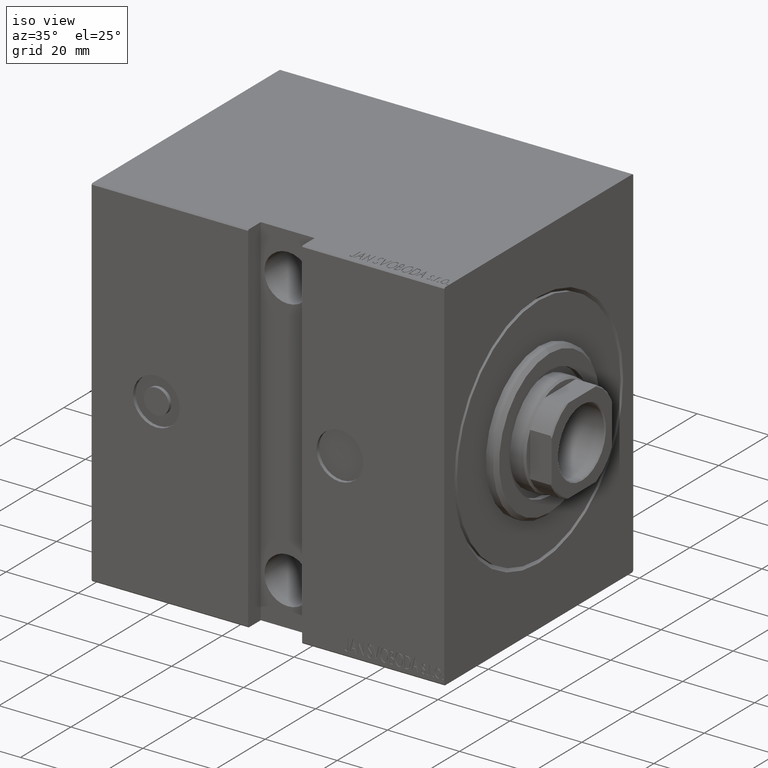
[diagram: clean part render]
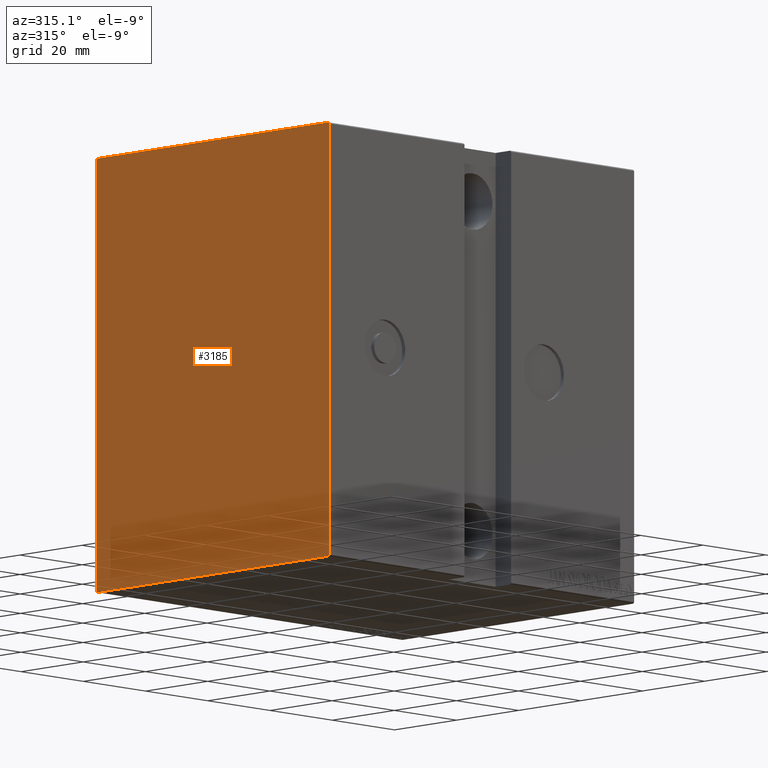
[diagram: tour spotlight — one face highlighted and labeled with its STEP entity id]
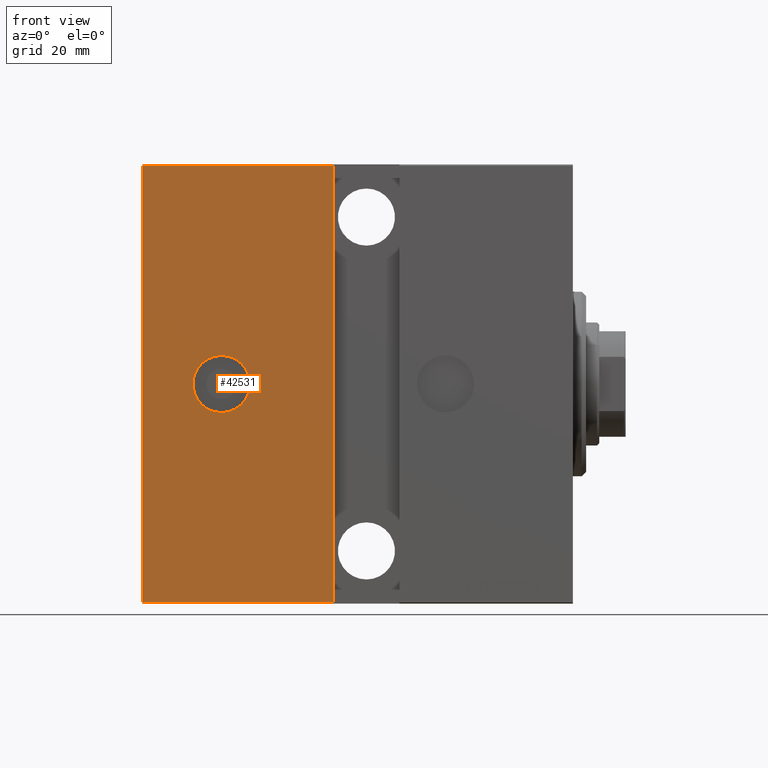
[diagram: tour spotlight — one face highlighted and labeled with its STEP entity id]
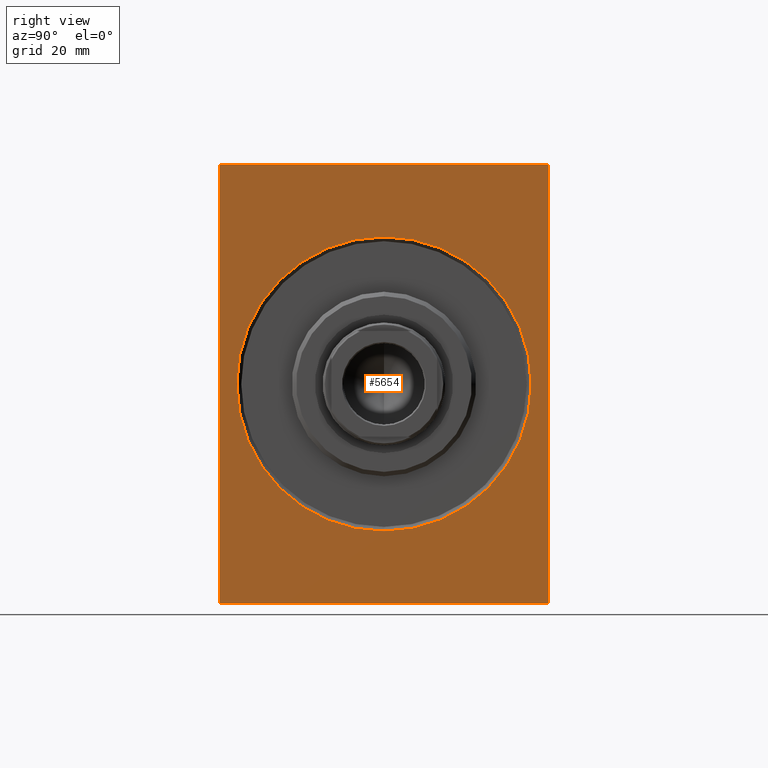
[diagram: tour spotlight — one face highlighted and labeled with its STEP entity id]
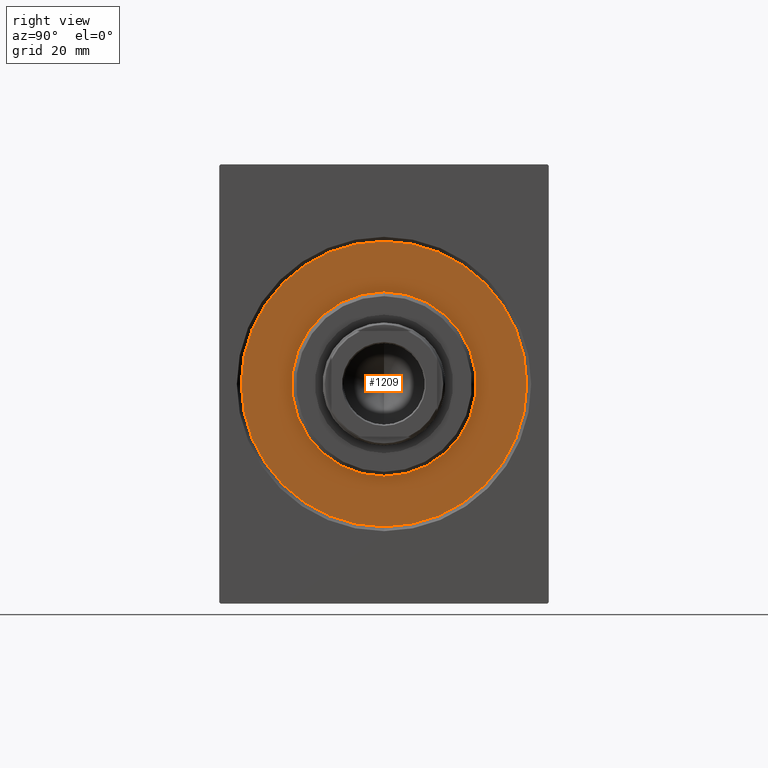
[diagram: tour spotlight — one face highlighted and labeled with its STEP entity id]
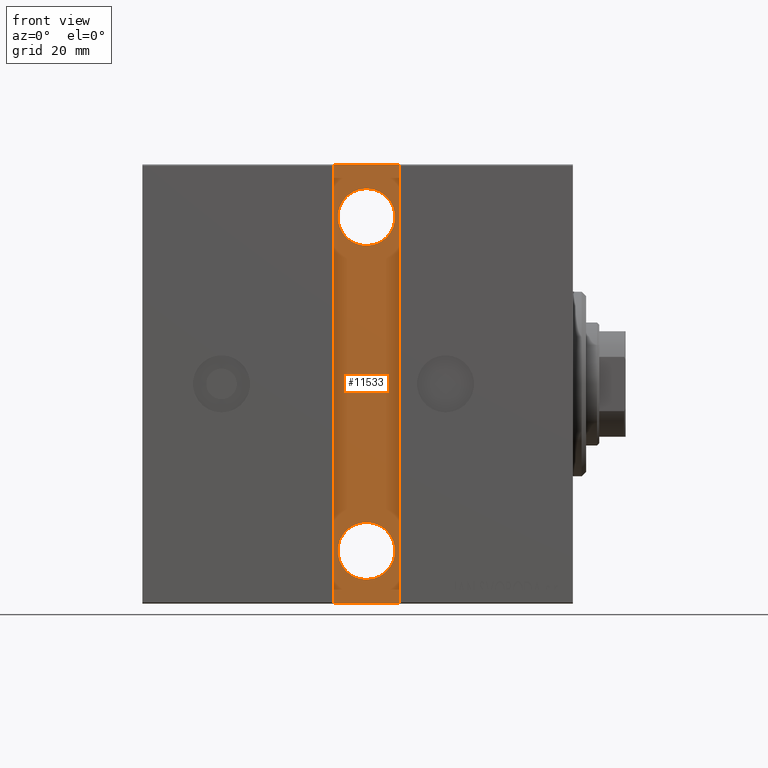
[diagram: tour spotlight — one face highlighted and labeled with its STEP entity id]
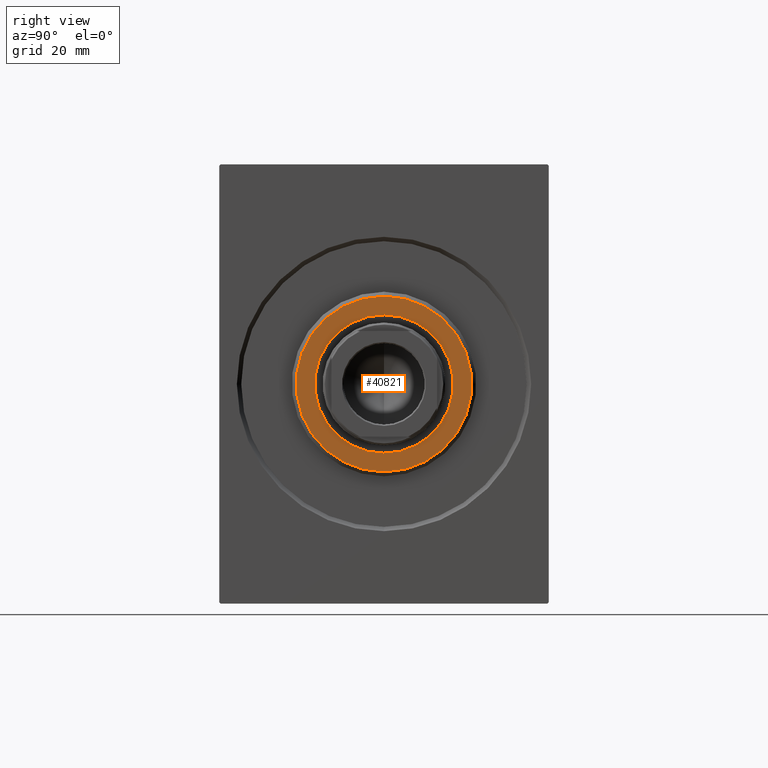
[diagram: tour spotlight — one face highlighted and labeled with its STEP entity id]
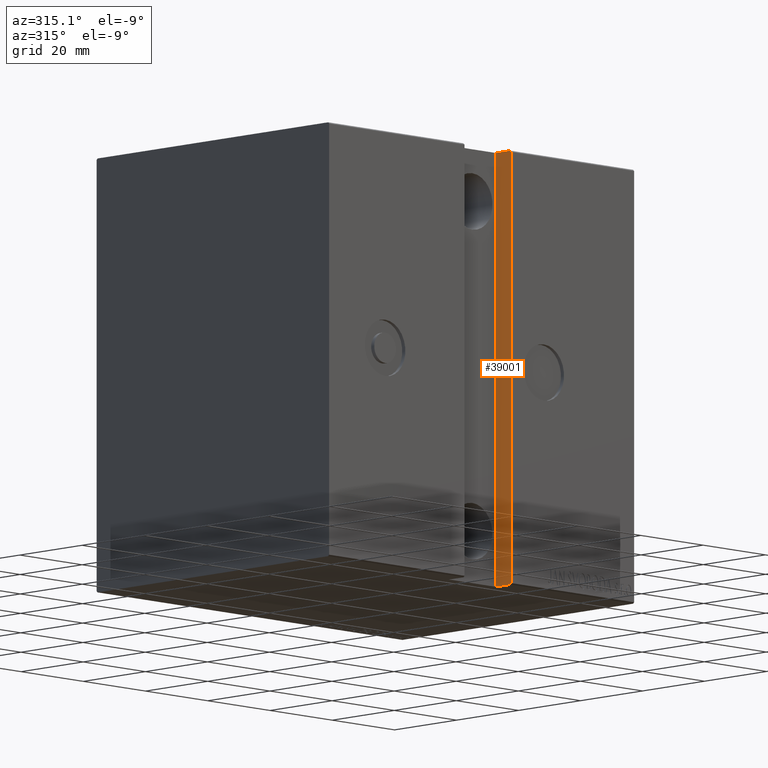
[diagram: tour spotlight — one face highlighted and labeled with its STEP entity id]
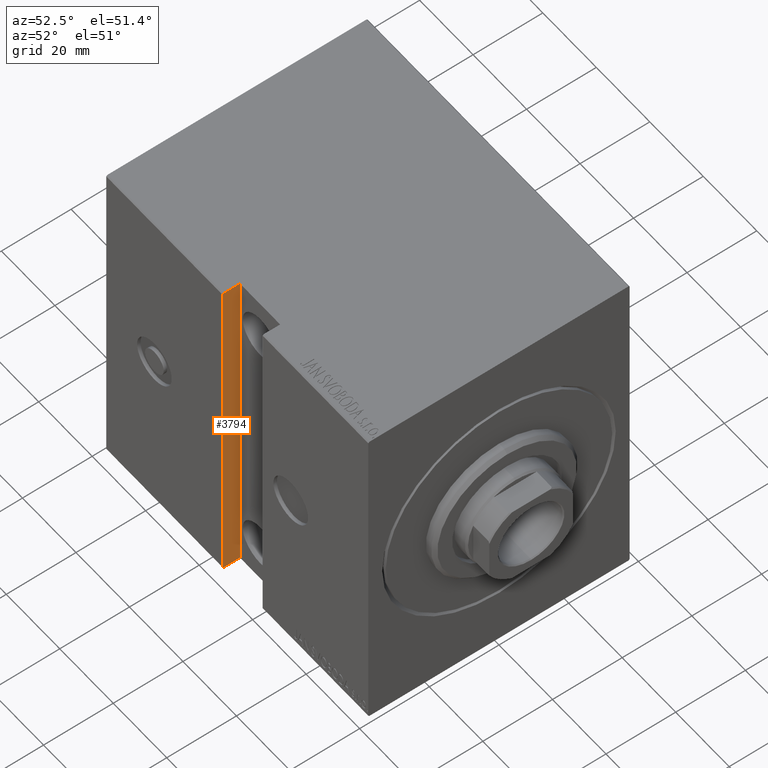
[diagram: tour spotlight — one face highlighted and labeled with its STEP entity id]
A machine part: a face-by-face anatomy tour. The part has 839 B-rep faces; the first image is the clean iso view, then the 8 largest visible faces are spotlighted one at a time (largest first), each with its STEP entity span.

Face 1 — auxiliary view, entity #3185. In plain terms, the highlighted planar face has unit normal (-1, 0, 0).
Definition (entity closure, byte-faithful):
#1185 = DIRECTION ( 'NONE',  ( -0.000000000000000000, 0.7071067811865474617, -0.7071067811865474617 ) ) ;
#1273 = LINE ( 'NONE', #18300, #32748 ) ;
#1602 = CARTESIAN_POINT ( 'NONE',  ( 98.00000000000000000, -43.59999999999999432, -43.59999999999999432 ) ) ;
#1852 = LINE ( 'NONE', #31779, #15270 ) ;
#2528 = VERTEX_POINT ( 'NONE', #19038 ) ;
#2651 = CARTESIAN_POINT ( 'NONE',  ( 98.00000000000000000, -37.19999999999997442, -50.00000000000001421 ) ) ;
#3185 = ADVANCED_FACE ( 'NONE', ( #15912 ), #35513, .T. ) ;
#3257 = EDGE_CURVE ( 'NONE', #35203, #31420, #37424, .T. ) ;
#3532 = EDGE_CURVE ( 'NONE', #38888, #35203, #21223, .T. ) ;
#3603 = CARTESIAN_POINT ( 'NONE',  ( 98.00000000000000000, 43.59999999999956088, -43.60000000000057696 ) ) ;
#4114 = CARTESIAN_POINT ( 'NONE',  ( 98.00000000000000000, -37.19999999999996732, 50.00000000000000000 ) ) ;
#5564 = LINE ( 'NONE', #18715, #21571 ) ;
#5673 = LINE ( 'NONE', #15382, #18474 ) ;
#6002 = CARTESIAN_POINT ( 'NONE',  ( 98.00000000000000000, 0.000000000000000000, 0.000000000000000000 ) ) ;
#7939 = VECTOR ( 'NONE', #33326, 1000.000000000000114 ) ;
#8648 = ORIENTED_EDGE ( 'NONE', *, *, #38945, .T. ) ;
#10097 = EDGE_CURVE ( 'NONE', #2528, #32942, #5673, .T. ) ;
#11416 = ORIENTED_EDGE ( 'NONE', *, *, #3257, .T. ) ;
#11550 = DIRECTION ( 'NONE',  ( 0.000000000000000000, -0.7071067811865556774, -0.7071067811865392461 ) ) ;
#15270 = VECTOR ( 'NONE', #11550, 1000.000000000000114 ) ;
#15382 = CARTESIAN_POINT ( 'NONE',  ( 98.00000000000000000, 37.50000000000000711, -50.00000000000000711 ) ) ;
#15912 = FACE_OUTER_BOUND ( 'NONE', #41046, .T. ) ;
#16068 = CARTESIAN_POINT ( 'NONE',  ( 98.00000000000000000, 43.60000000000042775, 43.59999999999941878 ) ) ;
#17355 = ORIENTED_EDGE ( 'NONE', *, *, #36508, .T. ) ;
#18300 = CARTESIAN_POINT ( 'NONE',  ( 98.00000000000000000, -37.50000000000000000, 50.00000000000000000 ) ) ;
#18474 = VECTOR ( 'NONE', #39240, 1000.000000000000000 ) ;
#18715 = CARTESIAN_POINT ( 'NONE',  ( 98.00000000000000000, 37.49999999999999289, 50.00000000000001421 ) ) ;
#18901 = VECTOR ( 'NONE', #35454, 1000.000000000000114 ) ;
#19038 = CARTESIAN_POINT ( 'NONE',  ( 98.00000000000000000, 37.50000000000000711, -49.70000000000000284 ) ) ;
#19244 = EDGE_CURVE ( 'NONE', #32355, #23278, #5564, .T. ) ;
#21223 = LINE ( 'NONE', #1602, #32844 ) ;
#21571 = VECTOR ( 'NONE', #28399, 1000.000000000000000 ) ;
#23278 = VERTEX_POINT ( 'NONE', #4114 ) ;
#23335 = ORIENTED_EDGE ( 'NONE', *, *, #3532, .T. ) ;
#23637 = LINE ( 'NONE', #3603, #7939 ) ;
#25599 = DIRECTION ( 'NONE',  ( 1.000000000000000000, 0.000000000000000000, 0.000000000000000000 ) ) ;
#25673 = EDGE_CURVE ( 'NONE', #23278, #36511, #1852, .T. ) ;
#25752 = LINE ( 'NONE', #16068, #18901 ) ;
#26058 = CARTESIAN_POINT ( 'NONE',  ( 98.00000000000000000, 37.19999999999998863, -50.00000000000000711 ) ) ;
#26658 = VECTOR ( 'NONE', #34831, 1000.000000000000000 ) ;
#28200 = CARTESIAN_POINT ( 'NONE',  ( 98.00000000000000000, 37.19999999999998153, 50.00000000000001421 ) ) ;
#28399 = DIRECTION ( 'NONE',  ( 0.000000000000000000, -1.000000000000000000, -1.850371707708594563E-16 ) ) ;
#29248 = DIRECTION ( 'NONE',  ( 0.000000000000000000, 0.000000000000000000, -1.000000000000000000 ) ) ;
#29379 = ORIENTED_EDGE ( 'NONE', *, *, #19244, .T. ) ;
#31420 = VERTEX_POINT ( 'NONE', #26058 ) ;
#31422 = DIRECTION ( 'NONE',  ( 0.000000000000000000, 0.000000000000000000, -1.000000000000000000 ) ) ;
#31779 = CARTESIAN_POINT ( 'NONE',  ( 98.00000000000000000, -43.59999999999956088, 43.60000000000057696 ) ) ;
#32355 = VERTEX_POINT ( 'NONE', #28200 ) ;
#32658 = EDGE_CURVE ( 'NONE', #32942, #32355, #25752, .T. ) ;
#32748 = VECTOR ( 'NONE', #31422, 1000.000000000000000 ) ;
#32844 = VECTOR ( 'NONE', #1185, 1000.000000000000114 ) ;
#32942 = VERTEX_POINT ( 'NONE', #39412 ) ;
#33326 = DIRECTION ( 'NONE',  ( -0.000000000000000000, 0.7071067811865556774, 0.7071067811865392461 ) ) ;
#33367 = CARTESIAN_POINT ( 'NONE',  ( 98.00000000000000000, -37.50000000000000000, -49.69999999999999574 ) ) ;
#33678 = ORIENTED_EDGE ( 'NONE', *, *, #10097, .T. ) ;
#34831 = DIRECTION ( 'NONE',  ( 0.000000000000000000, 1.000000000000000000, 9.251858538542970348E-17 ) ) ;
#35203 = VERTEX_POINT ( 'NONE', #2651 ) ;
#35454 = DIRECTION ( 'NONE',  ( -0.000000000000000000, -0.7071067811865392461, 0.7071067811865556774 ) ) ;
#35513 = PLANE ( 'NONE',  #35590 ) ;
#35590 = AXIS2_PLACEMENT_3D ( 'NONE', #6002, #25599, #29248 ) ;
#36508 = EDGE_CURVE ( 'NONE', #31420, #2528, #23637, .T. ) ;
#36511 = VERTEX_POINT ( 'NONE', #39786 ) ;
#37424 = LINE ( 'NONE', #41485, #26658 ) ;
#37996 = ORIENTED_EDGE ( 'NONE', *, *, #32658, .T. ) ;
#38888 = VERTEX_POINT ( 'NONE', #33367 ) ;
#38945 = EDGE_CURVE ( 'NONE', #36511, #38888, #1273, .T. ) ;
#39240 = DIRECTION ( 'NONE',  ( 0.000000000000000000, -1.387778780781445182E-16, 1.000000000000000000 ) ) ;
#39412 = CARTESIAN_POINT ( 'NONE',  ( 98.00000000000000000, 37.49999999999999289, 49.70000000000000284 ) ) ;
#39786 = CARTESIAN_POINT ( 'NONE',  ( 98.00000000000000000, -37.50000000000000000, 49.69999999999998153 ) ) ;
#41046 = EDGE_LOOP ( 'NONE', ( #11416, #17355, #33678, #37996, #29379, #41320, #8648, #23335 ) ) ;
#41320 = ORIENTED_EDGE ( 'NONE', *, *, #25673, .T. ) ;
#41485 = CARTESIAN_POINT ( 'NONE',  ( 98.00000000000000000, -37.50000000000000000, -50.00000000000001421 ) ) ;

Face 2 — front view, entity #42531. In plain terms, the highlighted planar face has unit normal (-0, 1, -0).
Definition (entity closure, byte-faithful):
#475 = CARTESIAN_POINT ( 'NONE',  ( 54.50000000000001421, 37.50000000000000000, 49.70000000000000284 ) ) ;
#1672 = AXIS2_PLACEMENT_3D ( 'NONE', #23271, #38999, #10337 ) ;
#2528 = VERTEX_POINT ( 'NONE', #19038 ) ;
#2790 = EDGE_CURVE ( 'NONE', #13850, #11504, #2821, .T. ) ;
#2821 = LINE ( 'NONE', #12513, #21141 ) ;
#3537 = CARTESIAN_POINT ( 'NONE',  ( 80.00000000000001421, 37.50000000000000000, -6.499999999999996447 ) ) ;
#4939 = CARTESIAN_POINT ( 'NONE',  ( 80.00000000000001421, 37.50000000000000000, 6.500000000000006217 ) ) ;
#5390 = DIRECTION ( 'NONE',  ( 0.000000000000000000, 1.387778780781445182E-16, -1.000000000000000000 ) ) ;
#5673 = LINE ( 'NONE', #15382, #18474 ) ;
#5960 = ORIENTED_EDGE ( 'NONE', *, *, #10097, .F. ) ;
#7438 = VERTEX_POINT ( 'NONE', #4939 ) ;
#9111 = CIRCLE ( 'NONE', #20126, 6.500000000000001776 ) ;
#9355 = DIRECTION ( 'NONE',  ( 0.000000000000000000, 0.000000000000000000, 1.000000000000000000 ) ) ;
#9459 = ORIENTED_EDGE ( 'NONE', *, *, #17709, .F. ) ;
#10097 = EDGE_CURVE ( 'NONE', #2528, #32942, #5673, .T. ) ;
#10337 = DIRECTION ( 'NONE',  ( 0.000000000000000000, 0.000000000000000000, 1.000000000000000000 ) ) ;
#10610 = VECTOR ( 'NONE', #37055, 1000.000000000000000 ) ;
#11504 = VERTEX_POINT ( 'NONE', #28212 ) ;
#12513 = CARTESIAN_POINT ( 'NONE',  ( 54.50000000000000000, 37.50000000000000000, -50.00000000000000711 ) ) ;
#13850 = VERTEX_POINT ( 'NONE', #475 ) ;
#15139 = ORIENTED_EDGE ( 'NONE', *, *, #17569, .T. ) ;
#15382 = CARTESIAN_POINT ( 'NONE',  ( 98.00000000000000000, 37.50000000000000711, -50.00000000000000711 ) ) ;
#16687 = EDGE_LOOP ( 'NONE', ( #5960, #34237, #18840, #15139 ) ) ;
#16888 = CARTESIAN_POINT ( 'NONE',  ( 80.00000000000001421, 37.50000000000000000, 5.204170427930419706E-15 ) ) ;
#17569 = EDGE_CURVE ( 'NONE', #13850, #32942, #20189, .T. ) ;
#17709 = EDGE_CURVE ( 'NONE', #31700, #7438, #9111, .T. ) ;
#17738 = ORIENTED_EDGE ( 'NONE', *, *, #32929, .F. ) ;
#17895 = LINE ( 'NONE', #37481, #10610 ) ;
#18474 = VECTOR ( 'NONE', #39240, 1000.000000000000000 ) ;
#18840 = ORIENTED_EDGE ( 'NONE', *, *, #2790, .F. ) ;
#19038 = CARTESIAN_POINT ( 'NONE',  ( 98.00000000000000000, 37.50000000000000711, -49.70000000000000284 ) ) ;
#20126 = AXIS2_PLACEMENT_3D ( 'NONE', #16888, #42083, #9355 ) ;
#20189 = LINE ( 'NONE', #20402, #24273 ) ;
#20402 = CARTESIAN_POINT ( 'NONE',  ( 98.00000000000000000, 37.49999999999999289, 49.70000000000000284 ) ) ;
#21141 = VECTOR ( 'NONE', #26288, 1000.000000000000000 ) ;
#23002 = CIRCLE ( 'NONE', #1672, 6.500000000000001776 ) ;
#23271 = CARTESIAN_POINT ( 'NONE',  ( 80.00000000000001421, 37.50000000000000000, 5.204170427930419706E-15 ) ) ;
#24273 = VECTOR ( 'NONE', #30084, 1000.000000000000000 ) ;
#24771 = CARTESIAN_POINT ( 'NONE',  ( 98.00000000000000000, 37.50000000000000711, -50.00000000000000711 ) ) ;
#26288 = DIRECTION ( 'NONE',  ( -1.387778780781445676E-16, -0.000000000000000000, -1.000000000000000000 ) ) ;
#28212 = CARTESIAN_POINT ( 'NONE',  ( 54.50000000000000000, 37.50000000000000000, -49.70000000000000284 ) ) ;
#30084 = DIRECTION ( 'NONE',  ( 1.000000000000000000, 0.000000000000000000, 0.000000000000000000 ) ) ;
#31700 = VERTEX_POINT ( 'NONE', #3537 ) ;
#32091 = EDGE_LOOP ( 'NONE', ( #17738, #9459 ) ) ;
#32929 = EDGE_CURVE ( 'NONE', #7438, #31700, #23002, .T. ) ;
#32942 = VERTEX_POINT ( 'NONE', #39412 ) ;
#33055 = EDGE_CURVE ( 'NONE', #2528, #11504, #17895, .T. ) ;
#34141 = AXIS2_PLACEMENT_3D ( 'NONE', #24771, #34901, #5390 ) ;
#34237 = ORIENTED_EDGE ( 'NONE', *, *, #33055, .T. ) ;
#34692 = FACE_OUTER_BOUND ( 'NONE', #16687, .T. ) ;
#34901 = DIRECTION ( 'NONE',  ( 0.000000000000000000, -1.000000000000000000, -1.387778780781445182E-16 ) ) ;
#37055 = DIRECTION ( 'NONE',  ( -1.000000000000000000, 0.000000000000000000, 0.000000000000000000 ) ) ;
#37481 = CARTESIAN_POINT ( 'NONE',  ( 98.00000000000000000, 37.50000000000000711, -49.70000000000000284 ) ) ;
#38745 = FACE_BOUND ( 'NONE', #32091, .T. ) ;
#38999 = DIRECTION ( 'NONE',  ( 0.000000000000000000, 1.000000000000000000, 1.362214887667645277E-16 ) ) ;
#39240 = DIRECTION ( 'NONE',  ( 0.000000000000000000, -1.387778780781445182E-16, 1.000000000000000000 ) ) ;
#39412 = CARTESIAN_POINT ( 'NONE',  ( 98.00000000000000000, 37.49999999999999289, 49.70000000000000284 ) ) ;
#41970 = PLANE ( 'NONE',  #34141 ) ;
#42083 = DIRECTION ( 'NONE',  ( 0.000000000000000000, 1.000000000000000000, 1.362214887667645277E-16 ) ) ;
#42531 = ADVANCED_FACE ( 'NONE', ( #38745, #34692 ), #41970, .F. ) ;

Face 3 — right view, entity #5654. In plain terms, the highlighted planar face has unit normal (-1, 0, 0).
Definition (entity closure, byte-faithful):
#349 = LINE ( 'NONE', #33090, #4345 ) ;
#440 = EDGE_LOOP ( 'NONE', ( #16252, #648, #11955, #9955, #35614, #6319, #36823, #5348 ) ) ;
#545 = PLANE ( 'NONE',  #4008 ) ;
#648 = ORIENTED_EDGE ( 'NONE', *, *, #13270, .T. ) ;
#1433 = CARTESIAN_POINT ( 'NONE',  ( 0.000000000000000000, -37.50000000000000000, 49.69999999999998153 ) ) ;
#2282 = VECTOR ( 'NONE', #19942, 1000.000000000000114 ) ;
#2291 = LINE ( 'NONE', #39106, #41716 ) ;
#2354 = VECTOR ( 'NONE', #6502, 1000.000000000000114 ) ;
#3367 = CARTESIAN_POINT ( 'NONE',  ( 0.000000000000000000, 37.19999999999998863, -50.00000000000000711 ) ) ;
#4008 = AXIS2_PLACEMENT_3D ( 'NONE', #6998, #36311, #36517 ) ;
#4074 = EDGE_CURVE ( 'NONE', #4184, #42444, #34918, .T. ) ;
#4184 = VERTEX_POINT ( 'NONE', #30759 ) ;
#4345 = VECTOR ( 'NONE', #27272, 1000.000000000000000 ) ;
#4526 = DIRECTION ( 'NONE',  ( 0.000000000000000000, -1.387778780781445182E-16, 1.000000000000000000 ) ) ;
#4846 = ORIENTED_EDGE ( 'NONE', *, *, #19108, .T. ) ;
#5348 = ORIENTED_EDGE ( 'NONE', *, *, #30705, .T. ) ;
#5654 = ADVANCED_FACE ( 'NONE', ( #39954, #39527 ), #545, .F. ) ;
#6319 = ORIENTED_EDGE ( 'NONE', *, *, #20386, .T. ) ;
#6363 = DIRECTION ( 'NONE',  ( 0.000000000000000000, -1.000000000000000000, -1.850371707708594563E-16 ) ) ;
#6442 = AXIS2_PLACEMENT_3D ( 'NONE', #7309, #17230, #29504 ) ;
#6502 = DIRECTION ( 'NONE',  ( -0.000000000000000000, -0.7071067811865474617, 0.7071067811865474617 ) ) ;
#6642 = DIRECTION ( 'NONE',  ( 0.000000000000000000, 0.000000000000000000, -1.000000000000000000 ) ) ;
#6646 = DIRECTION ( 'NONE',  ( 0.000000000000000000, 0.000000000000000000, -1.000000000000000000 ) ) ;
#6998 = CARTESIAN_POINT ( 'NONE',  ( 0.000000000000000000, 0.000000000000000000, 0.000000000000000000 ) ) ;
#7002 = VERTEX_POINT ( 'NONE', #23955 ) ;
#7309 = CARTESIAN_POINT ( 'NONE',  ( 0.000000000000000000, 0.000000000000000000, 0.000000000000000000 ) ) ;
#8986 = CARTESIAN_POINT ( 'NONE',  ( 0.000000000000000000, 37.49999999999999289, 49.70000000000000284 ) ) ;
#9955 = ORIENTED_EDGE ( 'NONE', *, *, #29591, .T. ) ;
#10311 = VERTEX_POINT ( 'NONE', #11456 ) ;
#11456 = CARTESIAN_POINT ( 'NONE',  ( 0.000000000000000000, 37.19999999999998153, 50.00000000000001421 ) ) ;
#11955 = ORIENTED_EDGE ( 'NONE', *, *, #41195, .F. ) ;
#12377 = VERTEX_POINT ( 'NONE', #12440 ) ;
#12440 = CARTESIAN_POINT ( 'NONE',  ( 0.000000000000000000, -37.19999999999997442, -50.00000000000001421 ) ) ;
#13134 = LINE ( 'NONE', #19395, #30357 ) ;
#13270 = EDGE_CURVE ( 'NONE', #10311, #21661, #13134, .T. ) ;
#13468 = CARTESIAN_POINT ( 'NONE',  ( 0.000000000000000000, 37.50000000000000711, -49.70000000000000284 ) ) ;
#14446 = CARTESIAN_POINT ( 'NONE',  ( 0.000000000000000000, 37.50000000000000711, -50.00000000000000711 ) ) ;
#16252 = ORIENTED_EDGE ( 'NONE', *, *, #40176, .F. ) ;
#16299 = LINE ( 'NONE', #26407, #29127 ) ;
#16513 = DIRECTION ( 'NONE',  ( -0.000000000000000000, 0.7071067811865556774, 0.7071067811865392461 ) ) ;
#16552 = EDGE_LOOP ( 'NONE', ( #38288, #4846 ) ) ;
#16840 = CARTESIAN_POINT ( 'NONE',  ( 0.000000000000000000, -37.19999999999997442, -50.00000000000001421 ) ) ;
#17230 = DIRECTION ( 'NONE',  ( 1.000000000000000000, 0.000000000000000000, 0.000000000000000000 ) ) ;
#19108 = EDGE_CURVE ( 'NONE', #42444, #4184, #32573, .T. ) ;
#19395 = CARTESIAN_POINT ( 'NONE',  ( 0.000000000000000000, 37.19999999999998153, 50.00000000000001421 ) ) ;
#19581 = LINE ( 'NONE', #32925, #27347 ) ;
#19942 = DIRECTION ( 'NONE',  ( 0.000000000000000000, -0.7071067811865556774, -0.7071067811865392461 ) ) ;
#20357 = LINE ( 'NONE', #13468, #2282 ) ;
#20386 = EDGE_CURVE ( 'NONE', #12377, #27288, #26735, .T. ) ;
#20692 = LINE ( 'NONE', #14446, #30764 ) ;
#21661 = VERTEX_POINT ( 'NONE', #8986 ) ;
#22596 = DIRECTION ( 'NONE',  ( 1.000000000000000000, 0.000000000000000000, 0.000000000000000000 ) ) ;
#23955 = CARTESIAN_POINT ( 'NONE',  ( 0.000000000000000000, 37.50000000000000711, -49.70000000000000284 ) ) ;
#24220 = VERTEX_POINT ( 'NONE', #26517 ) ;
#24782 = EDGE_CURVE ( 'NONE', #12377, #27336, #349, .T. ) ;
#26407 = CARTESIAN_POINT ( 'NONE',  ( 0.000000000000000000, -37.50000000000000000, 49.69999999999998153 ) ) ;
#26517 = CARTESIAN_POINT ( 'NONE',  ( 0.000000000000000000, -37.19999999999996732, 50.00000000000000000 ) ) ;
#26735 = LINE ( 'NONE', #16840, #2354 ) ;
#27272 = DIRECTION ( 'NONE',  ( 0.000000000000000000, 1.000000000000000000, 9.251858538542970348E-17 ) ) ;
#27288 = VERTEX_POINT ( 'NONE', #41924 ) ;
#27336 = VERTEX_POINT ( 'NONE', #3367 ) ;
#27347 = VECTOR ( 'NONE', #6646, 1000.000000000000000 ) ;
#28873 = DIRECTION ( 'NONE',  ( -0.000000000000000000, 0.7071067811865392461, -0.7071067811865556774 ) ) ;
#29127 = VECTOR ( 'NONE', #16513, 1000.000000000000114 ) ;
#29504 = DIRECTION ( 'NONE',  ( 0.000000000000000000, 0.000000000000000000, -1.000000000000000000 ) ) ;
#29591 = EDGE_CURVE ( 'NONE', #7002, #27336, #20357, .T. ) ;
#30357 = VECTOR ( 'NONE', #28873, 1000.000000000000114 ) ;
#30705 = EDGE_CURVE ( 'NONE', #40116, #24220, #16299, .T. ) ;
#30759 = CARTESIAN_POINT ( 'NONE',  ( 0.000000000000000000, 0.000000000000000000, 33.49999999999998579 ) ) ;
#30764 = VECTOR ( 'NONE', #4526, 1000.000000000000000 ) ;
#30797 = AXIS2_PLACEMENT_3D ( 'NONE', #38955, #22596, #6642 ) ;
#32573 = CIRCLE ( 'NONE', #6442, 33.49999999999998579 ) ;
#32925 = CARTESIAN_POINT ( 'NONE',  ( 0.000000000000000000, -37.50000000000000000, 50.00000000000000000 ) ) ;
#33090 = CARTESIAN_POINT ( 'NONE',  ( 0.000000000000000000, -37.50000000000000000, -50.00000000000001421 ) ) ;
#33828 = CARTESIAN_POINT ( 'NONE',  ( 0.000000000000000000, 4.102566777143632196E-15, -33.49999999999998579 ) ) ;
#34918 = CIRCLE ( 'NONE', #30797, 33.49999999999998579 ) ;
#35614 = ORIENTED_EDGE ( 'NONE', *, *, #24782, .F. ) ;
#36311 = DIRECTION ( 'NONE',  ( 1.000000000000000000, 0.000000000000000000, 0.000000000000000000 ) ) ;
#36517 = DIRECTION ( 'NONE',  ( 0.000000000000000000, 0.000000000000000000, -1.000000000000000000 ) ) ;
#36823 = ORIENTED_EDGE ( 'NONE', *, *, #42632, .F. ) ;
#38288 = ORIENTED_EDGE ( 'NONE', *, *, #4074, .T. ) ;
#38955 = CARTESIAN_POINT ( 'NONE',  ( 0.000000000000000000, 0.000000000000000000, 0.000000000000000000 ) ) ;
#39106 = CARTESIAN_POINT ( 'NONE',  ( 0.000000000000000000, 37.49999999999999289, 50.00000000000001421 ) ) ;
#39527 = FACE_OUTER_BOUND ( 'NONE', #440, .T. ) ;
#39954 = FACE_BOUND ( 'NONE', #16552, .T. ) ;
#40116 = VERTEX_POINT ( 'NONE', #1433 ) ;
#40176 = EDGE_CURVE ( 'NONE', #10311, #24220, #2291, .T. ) ;
#41195 = EDGE_CURVE ( 'NONE', #7002, #21661, #20692, .T. ) ;
#41716 = VECTOR ( 'NONE', #6363, 1000.000000000000000 ) ;
#41924 = CARTESIAN_POINT ( 'NONE',  ( 0.000000000000000000, -37.50000000000000000, -49.69999999999999574 ) ) ;
#42444 = VERTEX_POINT ( 'NONE', #33828 ) ;
#42632 = EDGE_CURVE ( 'NONE', #40116, #27288, #19581, .T. ) ;

Face 4 — right view, entity #1209. In plain terms, the highlighted planar face has unit normal (1, 0, 0).
Definition (entity closure, byte-faithful):
#59 = VERTEX_POINT ( 'NONE', #1243 ) ;
#652 = DIRECTION ( 'NONE',  ( 0.000000000000000000, 0.000000000000000000, -1.000000000000000000 ) ) ;
#672 = DIRECTION ( 'NONE',  ( 0.000000000000000000, 0.000000000000000000, -1.000000000000000000 ) ) ;
#1209 = ADVANCED_FACE ( 'NONE', ( #35219, #31976 ), #12586, .T. ) ;
#1243 = CARTESIAN_POINT ( 'NONE',  ( 0.000000000000000000, 2.571758278209441661E-15, -21.00000000000000000 ) ) ;
#1455 = EDGE_CURVE ( 'NONE', #12835, #59, #19726, .T. ) ;
#1554 = AXIS2_PLACEMENT_3D ( 'NONE', #13819, #14469, #672 ) ;
#2688 = DIRECTION ( 'NONE',  ( 0.000000000000000000, 0.000000000000000000, -1.000000000000000000 ) ) ;
#2896 = AXIS2_PLACEMENT_3D ( 'NONE', #7112, #33393, #652 ) ;
#5004 = EDGE_LOOP ( 'NONE', ( #19733, #28868 ) ) ;
#5700 = DIRECTION ( 'NONE',  ( 1.000000000000000000, 0.000000000000000000, 0.000000000000000000 ) ) ;
#6335 = CIRCLE ( 'NONE', #2896, 21.00000000000000000 ) ;
#6667 = CIRCLE ( 'NONE', #42519, 32.50000000000000000 ) ;
#6850 = EDGE_CURVE ( 'NONE', #14291, #12926, #6667, .T. ) ;
#7112 = CARTESIAN_POINT ( 'NONE',  ( 0.000000000000000000, 0.000000000000000000, 0.000000000000000000 ) ) ;
#7412 = CARTESIAN_POINT ( 'NONE',  ( 0.000000000000000000, 0.000000000000000000, 21.00000000000000000 ) ) ;
#8104 = DIRECTION ( 'NONE',  ( 0.000000000000000000, 0.000000000000000000, -1.000000000000000000 ) ) ;
#11831 = CARTESIAN_POINT ( 'NONE',  ( 0.000000000000000000, 0.000000000000000000, -32.50000000000000000 ) ) ;
#12212 = ORIENTED_EDGE ( 'NONE', *, *, #25902, .F. ) ;
#12586 = PLANE ( 'NONE',  #41719 ) ;
#12835 = VERTEX_POINT ( 'NONE', #7412 ) ;
#12911 = DIRECTION ( 'NONE',  ( 0.000000000000000000, 0.000000000000000000, -1.000000000000000000 ) ) ;
#12926 = VERTEX_POINT ( 'NONE', #17119 ) ;
#13819 = CARTESIAN_POINT ( 'NONE',  ( 0.000000000000000000, 0.000000000000000000, 0.000000000000000000 ) ) ;
#14291 = VERTEX_POINT ( 'NONE', #11831 ) ;
#14469 = DIRECTION ( 'NONE',  ( 1.000000000000000000, 0.000000000000000000, 0.000000000000000000 ) ) ;
#16971 = EDGE_CURVE ( 'NONE', #12926, #14291, #38018, .T. ) ;
#17119 = CARTESIAN_POINT ( 'NONE',  ( 0.000000000000000000, 3.980102097228898626E-15, 32.50000000000000000 ) ) ;
#18461 = ORIENTED_EDGE ( 'NONE', *, *, #1455, .F. ) ;
#19726 = CIRCLE ( 'NONE', #33456, 21.00000000000000000 ) ;
#19733 = ORIENTED_EDGE ( 'NONE', *, *, #6850, .T. ) ;
#22602 = CARTESIAN_POINT ( 'NONE',  ( 0.000000000000000000, 0.000000000000000000, 0.000000000000000000 ) ) ;
#25902 = EDGE_CURVE ( 'NONE', #59, #12835, #6335, .T. ) ;
#26049 = EDGE_LOOP ( 'NONE', ( #18461, #12212 ) ) ;
#27919 = DIRECTION ( 'NONE',  ( 1.000000000000000000, 0.000000000000000000, 0.000000000000000000 ) ) ;
#28868 = ORIENTED_EDGE ( 'NONE', *, *, #16971, .T. ) ;
#31976 = FACE_BOUND ( 'NONE', #26049, .T. ) ;
#32196 = CARTESIAN_POINT ( 'NONE',  ( 0.000000000000000000, 0.000000000000000000, 0.000000000000000000 ) ) ;
#33393 = DIRECTION ( 'NONE',  ( 1.000000000000000000, -0.000000000000000000, 0.000000000000000000 ) ) ;
#33456 = AXIS2_PLACEMENT_3D ( 'NONE', #22602, #38343, #12911 ) ;
#35219 = FACE_OUTER_BOUND ( 'NONE', #5004, .T. ) ;
#38018 = CIRCLE ( 'NONE', #1554, 32.50000000000000000 ) ;
#38343 = DIRECTION ( 'NONE',  ( 1.000000000000000000, -0.000000000000000000, 0.000000000000000000 ) ) ;
#41047 = CARTESIAN_POINT ( 'NONE',  ( 0.000000000000000000, 0.000000000000000000, 0.000000000000000000 ) ) ;
#41719 = AXIS2_PLACEMENT_3D ( 'NONE', #32196, #5700, #2688 ) ;
#42519 = AXIS2_PLACEMENT_3D ( 'NONE', #41047, #27919, #8104 ) ;

Face 5 — front view, entity #11533. In plain terms, the highlighted planar face has unit normal (0, 1, 0).
Definition (entity closure, byte-faithful):
#291 = EDGE_LOOP ( 'NONE', ( #42591, #29583 ) ) ;
#1605 = CARTESIAN_POINT ( 'NONE',  ( 47.00000000000002132, 32.50000000000000000, 38.00000000000000000 ) ) ;
#2266 = CARTESIAN_POINT ( 'NONE',  ( 39.50000000000000000, 32.50000000000000000, -50.00000000000000711 ) ) ;
#2545 = CARTESIAN_POINT ( 'NONE',  ( 54.50000000000000000, 32.50000000000000000, -50.00000000000000711 ) ) ;
#2930 = VECTOR ( 'NONE', #18856, 1000.000000000000000 ) ;
#3904 = AXIS2_PLACEMENT_3D ( 'NONE', #25122, #42112, #12837 ) ;
#3944 = EDGE_CURVE ( 'NONE', #21123, #37809, #14287, .T. ) ;
#4722 = ORIENTED_EDGE ( 'NONE', *, *, #20858, .T. ) ;
#5426 = DIRECTION ( 'NONE',  ( -1.387778780781445676E-16, -0.000000000000000000, -1.000000000000000000 ) ) ;
#5797 = DIRECTION ( 'NONE',  ( 0.000000000000000000, 0.000000000000000000, -1.000000000000000000 ) ) ;
#6193 = AXIS2_PLACEMENT_3D ( 'NONE', #12678, #8808, #35732 ) ;
#8077 = DIRECTION ( 'NONE',  ( 0.000000000000000000, -1.000000000000000000, 0.000000000000000000 ) ) ;
#8808 = DIRECTION ( 'NONE',  ( 0.000000000000000000, -1.000000000000000000, 0.000000000000000000 ) ) ;
#8887 = CARTESIAN_POINT ( 'NONE',  ( 47.00000000000002132, 32.50000000000000000, -44.50000000000000000 ) ) ;
#8897 = ORIENTED_EDGE ( 'NONE', *, *, #27672, .T. ) ;
#8922 = CARTESIAN_POINT ( 'NONE',  ( 54.50000000000001421, 32.50000000000000000, 49.99999999999999289 ) ) ;
#9207 = LINE ( 'NONE', #2545, #19516 ) ;
#9221 = CIRCLE ( 'NONE', #31958, 6.499999999999999112 ) ;
#11031 = CARTESIAN_POINT ( 'NONE',  ( 54.50000000000000000, 32.50000000000000000, -50.00000000000000711 ) ) ;
#11383 = VECTOR ( 'NONE', #5426, 1000.000000000000000 ) ;
#11453 = CARTESIAN_POINT ( 'NONE',  ( 47.00000000000002132, 32.50000000000000000, 31.50000000000000000 ) ) ;
#11533 = ADVANCED_FACE ( 'NONE', ( #28624, #35517, #22790 ), #42171, .F. ) ;
#12034 = CARTESIAN_POINT ( 'NONE',  ( 54.50000000000001421, 32.50000000000000000, 49.99999999999999289 ) ) ;
#12678 = CARTESIAN_POINT ( 'NONE',  ( 0.000000000000000000, 32.50000000000000000, 0.000000000000000000 ) ) ;
#12837 = DIRECTION ( 'NONE',  ( 0.000000000000000000, 0.000000000000000000, -1.000000000000000000 ) ) ;
#13439 = VECTOR ( 'NONE', #32204, 1000.000000000000000 ) ;
#13510 = DIRECTION ( 'NONE',  ( 0.000000000000000000, 0.000000000000000000, -1.000000000000000000 ) ) ;
#13744 = VERTEX_POINT ( 'NONE', #31739 ) ;
#14287 = CIRCLE ( 'NONE', #25958, 6.499999999999999112 ) ;
#15046 = CARTESIAN_POINT ( 'NONE',  ( 54.50000000000001421, 32.50000000000000711, -50.00000000000000711 ) ) ;
#15093 = CARTESIAN_POINT ( 'NONE',  ( 47.00000000000002132, 32.50000000000000000, -38.00000000000000000 ) ) ;
#18856 = DIRECTION ( 'NONE',  ( 1.000000000000000000, -0.000000000000000000, -0.000000000000000000 ) ) ;
#19271 = EDGE_CURVE ( 'NONE', #27246, #13744, #9207, .T. ) ;
#19516 = VECTOR ( 'NONE', #22135, 1000.000000000000000 ) ;
#20858 = EDGE_CURVE ( 'NONE', #13744, #31446, #31771, .T. ) ;
#21123 = VERTEX_POINT ( 'NONE', #8887 ) ;
#21634 = DIRECTION ( 'NONE',  ( 0.000000000000000000, 0.000000000000000000, -1.000000000000000000 ) ) ;
#22135 = DIRECTION ( 'NONE',  ( -1.000000000000000000, 0.000000000000000000, 0.000000000000000000 ) ) ;
#22421 = VERTEX_POINT ( 'NONE', #12034 ) ;
#22790 = FACE_OUTER_BOUND ( 'NONE', #34100, .T. ) ;
#23804 = AXIS2_PLACEMENT_3D ( 'NONE', #26221, #27076, #13510 ) ;
#25022 = LINE ( 'NONE', #11031, #11383 ) ;
#25122 = CARTESIAN_POINT ( 'NONE',  ( 47.00000000000002132, 32.50000000000000000, -38.00000000000000000 ) ) ;
#25893 = CIRCLE ( 'NONE', #3904, 6.499999999999999112 ) ;
#25958 = AXIS2_PLACEMENT_3D ( 'NONE', #15093, #28217, #5797 ) ;
#26221 = CARTESIAN_POINT ( 'NONE',  ( 47.00000000000002132, 32.50000000000000000, 38.00000000000000000 ) ) ;
#26360 = LINE ( 'NONE', #8922, #2930 ) ;
#27076 = DIRECTION ( 'NONE',  ( 0.000000000000000000, -1.000000000000000000, 0.000000000000000000 ) ) ;
#27246 = VERTEX_POINT ( 'NONE', #15046 ) ;
#27672 = EDGE_CURVE ( 'NONE', #31446, #22421, #26360, .T. ) ;
#27962 = CARTESIAN_POINT ( 'NONE',  ( 47.00000000000002132, 32.50000000000000000, -31.50000000000000000 ) ) ;
#28217 = DIRECTION ( 'NONE',  ( 0.000000000000000000, -1.000000000000000000, 0.000000000000000000 ) ) ;
#28624 = FACE_BOUND ( 'NONE', #32481, .T. ) ;
#28635 = CIRCLE ( 'NONE', #23804, 6.499999999999999112 ) ;
#28947 = ORIENTED_EDGE ( 'NONE', *, *, #19271, .T. ) ;
#29583 = ORIENTED_EDGE ( 'NONE', *, *, #3944, .T. ) ;
#31446 = VERTEX_POINT ( 'NONE', #39607 ) ;
#31739 = CARTESIAN_POINT ( 'NONE',  ( 39.50000000000000000, 32.50000000000000000, -50.00000000000000711 ) ) ;
#31771 = LINE ( 'NONE', #2266, #13439 ) ;
#31958 = AXIS2_PLACEMENT_3D ( 'NONE', #1605, #8077, #21634 ) ;
#32001 = VERTEX_POINT ( 'NONE', #11453 ) ;
#32204 = DIRECTION ( 'NONE',  ( 6.938893903907228378E-17, 0.000000000000000000, 1.000000000000000000 ) ) ;
#32481 = EDGE_LOOP ( 'NONE', ( #42281, #35218 ) ) ;
#33145 = VERTEX_POINT ( 'NONE', #41752 ) ;
#33754 = EDGE_CURVE ( 'NONE', #33145, #32001, #9221, .T. ) ;
#34100 = EDGE_LOOP ( 'NONE', ( #4722, #8897, #42157, #28947 ) ) ;
#35218 = ORIENTED_EDGE ( 'NONE', *, *, #39133, .T. ) ;
#35517 = FACE_BOUND ( 'NONE', #291, .T. ) ;
#35732 = DIRECTION ( 'NONE',  ( 0.000000000000000000, -0.000000000000000000, -1.000000000000000000 ) ) ;
#36084 = EDGE_CURVE ( 'NONE', #22421, #27246, #25022, .T. ) ;
#37809 = VERTEX_POINT ( 'NONE', #27962 ) ;
#39133 = EDGE_CURVE ( 'NONE', #32001, #33145, #28635, .T. ) ;
#39607 = CARTESIAN_POINT ( 'NONE',  ( 39.50000000000000711, 32.50000000000000000, 49.99999999999999289 ) ) ;
#40234 = EDGE_CURVE ( 'NONE', #37809, #21123, #25893, .T. ) ;
#41752 = CARTESIAN_POINT ( 'NONE',  ( 47.00000000000002132, 32.50000000000000000, 44.50000000000000000 ) ) ;
#42112 = DIRECTION ( 'NONE',  ( 0.000000000000000000, -1.000000000000000000, 0.000000000000000000 ) ) ;
#42157 = ORIENTED_EDGE ( 'NONE', *, *, #36084, .T. ) ;
#42171 = PLANE ( 'NONE',  #6193 ) ;
#42281 = ORIENTED_EDGE ( 'NONE', *, *, #33754, .T. ) ;
#42591 = ORIENTED_EDGE ( 'NONE', *, *, #40234, .T. ) ;

Face 6 — right view, entity #40821. In plain terms, the highlighted planar face has unit normal (1, 0, 0).
Definition (entity closure, byte-faithful):
#256 = CARTESIAN_POINT ( 'NONE',  ( 3.000000000000000000, 1.928818708657080950E-15, -15.75000000000000000 ) ) ;
#1719 = VERTEX_POINT ( 'NONE', #256 ) ;
#1953 = DIRECTION ( 'NONE',  ( 0.000000000000000000, 0.000000000000000000, -1.000000000000000000 ) ) ;
#3087 = PLANE ( 'NONE',  #19048 ) ;
#4316 = CIRCLE ( 'NONE', #14622, 15.75000000000000000 ) ;
#4887 = CARTESIAN_POINT ( 'NONE',  ( 3.000000000000000000, 0.000000000000000000, 0.000000000000000000 ) ) ;
#6147 = ORIENTED_EDGE ( 'NONE', *, *, #28062, .T. ) ;
#6653 = CARTESIAN_POINT ( 'NONE',  ( 3.000000000000000000, 0.000000000000000000, 20.00000000000001776 ) ) ;
#6687 = VERTEX_POINT ( 'NONE', #15895 ) ;
#7890 = DIRECTION ( 'NONE',  ( 0.000000000000000000, 0.000000000000000000, -1.000000000000000000 ) ) ;
#9335 = ORIENTED_EDGE ( 'NONE', *, *, #14667, .T. ) ;
#9749 = CIRCLE ( 'NONE', #30483, 20.00000000000001776 ) ;
#11650 = DIRECTION ( 'NONE',  ( -1.000000000000000000, 0.000000000000000000, -0.000000000000000000 ) ) ;
#14622 = AXIS2_PLACEMENT_3D ( 'NONE', #28020, #11650, #1953 ) ;
#14667 = EDGE_CURVE ( 'NONE', #6687, #36977, #16624, .T. ) ;
#15895 = CARTESIAN_POINT ( 'NONE',  ( 3.000000000000000000, 2.510525938252075270E-15, -20.00000000000001776 ) ) ;
#16236 = CARTESIAN_POINT ( 'NONE',  ( 3.000000000000000000, 0.000000000000000000, 0.000000000000000000 ) ) ;
#16624 = CIRCLE ( 'NONE', #42066, 20.00000000000001776 ) ;
#17640 = VERTEX_POINT ( 'NONE', #29171 ) ;
#19048 = AXIS2_PLACEMENT_3D ( 'NONE', #16236, #29366, #42497 ) ;
#19120 = EDGE_LOOP ( 'NONE', ( #40334, #9335 ) ) ;
#19916 = DIRECTION ( 'NONE',  ( 0.000000000000000000, 0.000000000000000000, -1.000000000000000000 ) ) ;
#22687 = FACE_OUTER_BOUND ( 'NONE', #19120, .T. ) ;
#23227 = EDGE_LOOP ( 'NONE', ( #36014, #6147 ) ) ;
#25616 = EDGE_CURVE ( 'NONE', #36977, #6687, #9749, .T. ) ;
#28020 = CARTESIAN_POINT ( 'NONE',  ( 3.000000000000000000, 0.000000000000000000, 0.000000000000000000 ) ) ;
#28062 = EDGE_CURVE ( 'NONE', #1719, #17640, #4316, .T. ) ;
#28359 = DIRECTION ( 'NONE',  ( 0.000000000000000000, 0.000000000000000000, -1.000000000000000000 ) ) ;
#29171 = CARTESIAN_POINT ( 'NONE',  ( 3.000000000000000000, 0.000000000000000000, 15.75000000000000000 ) ) ;
#29366 = DIRECTION ( 'NONE',  ( 1.000000000000000000, -0.000000000000000000, 0.000000000000000000 ) ) ;
#30483 = AXIS2_PLACEMENT_3D ( 'NONE', #37404, #39978, #7890 ) ;
#32598 = FACE_BOUND ( 'NONE', #23227, .T. ) ;
#33466 = CARTESIAN_POINT ( 'NONE',  ( 3.000000000000000000, 0.000000000000000000, 0.000000000000000000 ) ) ;
#34084 = EDGE_CURVE ( 'NONE', #17640, #1719, #37500, .T. ) ;
#34191 = DIRECTION ( 'NONE',  ( 1.000000000000000000, -0.000000000000000000, 0.000000000000000000 ) ) ;
#36014 = ORIENTED_EDGE ( 'NONE', *, *, #34084, .T. ) ;
#36977 = VERTEX_POINT ( 'NONE', #6653 ) ;
#37404 = CARTESIAN_POINT ( 'NONE',  ( 3.000000000000000000, 0.000000000000000000, 0.000000000000000000 ) ) ;
#37500 = CIRCLE ( 'NONE', #40892, 15.75000000000000000 ) ;
#39978 = DIRECTION ( 'NONE',  ( 1.000000000000000000, -0.000000000000000000, 0.000000000000000000 ) ) ;
#40334 = ORIENTED_EDGE ( 'NONE', *, *, #25616, .T. ) ;
#40348 = DIRECTION ( 'NONE',  ( -1.000000000000000000, 0.000000000000000000, -0.000000000000000000 ) ) ;
#40821 = ADVANCED_FACE ( 'NONE', ( #22687, #32598 ), #3087, .T. ) ;
#40892 = AXIS2_PLACEMENT_3D ( 'NONE', #33466, #40348, #19916 ) ;
#42066 = AXIS2_PLACEMENT_3D ( 'NONE', #4887, #34191, #28359 ) ;
#42497 = DIRECTION ( 'NONE',  ( 0.000000000000000000, 0.000000000000000000, -1.000000000000000000 ) ) ;

Face 7 — auxiliary view, entity #39001. In plain terms, the highlighted planar face has unit normal (1, 0, 0).
Definition (entity closure, byte-faithful):
#2134 = ORIENTED_EDGE ( 'NONE', *, *, #20177, .F. ) ;
#2266 = CARTESIAN_POINT ( 'NONE',  ( 39.50000000000000000, 32.50000000000000000, -50.00000000000000711 ) ) ;
#2555 = CARTESIAN_POINT ( 'NONE',  ( 39.50000000000000711, 32.50000000000000000, 49.99999999999999289 ) ) ;
#2877 = VECTOR ( 'NONE', #19944, 1000.000000000000000 ) ;
#3049 = VECTOR ( 'NONE', #24603, 1000.000000000000114 ) ;
#5842 = VERTEX_POINT ( 'NONE', #7868 ) ;
#7798 = ORIENTED_EDGE ( 'NONE', *, *, #38493, .T. ) ;
#7868 = CARTESIAN_POINT ( 'NONE',  ( 39.50000000000000711, 37.19999999999998153, 49.99999999999999289 ) ) ;
#8365 = PLANE ( 'NONE',  #38249 ) ;
#10972 = CARTESIAN_POINT ( 'NONE',  ( 39.50000000000000000, 32.50000000000000000, -50.00000000000000711 ) ) ;
#11285 = CARTESIAN_POINT ( 'NONE',  ( 39.50000000000000000, 37.19999999999998863, -50.00000000000000711 ) ) ;
#11991 = VERTEX_POINT ( 'NONE', #38386 ) ;
#13439 = VECTOR ( 'NONE', #32204, 1000.000000000000000 ) ;
#13744 = VERTEX_POINT ( 'NONE', #31739 ) ;
#14012 = ORIENTED_EDGE ( 'NONE', *, *, #14833, .T. ) ;
#14833 = EDGE_CURVE ( 'NONE', #11991, #21431, #36943, .T. ) ;
#19944 = DIRECTION ( 'NONE',  ( 6.938893903907228378E-17, 0.000000000000000000, 1.000000000000000000 ) ) ;
#19993 = EDGE_CURVE ( 'NONE', #35029, #11991, #20895, .T. ) ;
#20177 = EDGE_CURVE ( 'NONE', #31446, #5842, #28617, .T. ) ;
#20858 = EDGE_CURVE ( 'NONE', #13744, #31446, #31771, .T. ) ;
#20895 = LINE ( 'NONE', #24335, #23625 ) ;
#21431 = VERTEX_POINT ( 'NONE', #29700 ) ;
#21511 = DIRECTION ( 'NONE',  ( 6.938893903907228378E-17, 0.000000000000000000, 1.000000000000000000 ) ) ;
#21705 = DIRECTION ( 'NONE',  ( -0.000000000000000000, 1.000000000000000000, -0.000000000000000000 ) ) ;
#23625 = VECTOR ( 'NONE', #30803, 1000.000000000000114 ) ;
#24109 = DIRECTION ( 'NONE',  ( -1.000000000000000000, 0.000000000000000000, 6.938893903907228378E-17 ) ) ;
#24310 = LINE ( 'NONE', #38082, #27961 ) ;
#24323 = FACE_OUTER_BOUND ( 'NONE', #39898, .T. ) ;
#24335 = CARTESIAN_POINT ( 'NONE',  ( 39.50000000000000000, 37.50000000000000711, -49.70000000000000284 ) ) ;
#24603 = DIRECTION ( 'NONE',  ( 4.906538933386854558E-17, -0.7071067811865392461, 0.7071067811865556774 ) ) ;
#27961 = VECTOR ( 'NONE', #21705, 1000.000000000000000 ) ;
#28617 = LINE ( 'NONE', #2555, #31236 ) ;
#29700 = CARTESIAN_POINT ( 'NONE',  ( 39.50000000000000711, 37.50000000000000000, 49.70000000000000284 ) ) ;
#30803 = DIRECTION ( 'NONE',  ( 4.906538933386739926E-17, 0.7071067811865556774, 0.7071067811865392461 ) ) ;
#31236 = VECTOR ( 'NONE', #41746, 1000.000000000000000 ) ;
#31279 = CARTESIAN_POINT ( 'NONE',  ( 39.50000000000000711, 37.19999999999998153, 50.00000000000001421 ) ) ;
#31446 = VERTEX_POINT ( 'NONE', #39607 ) ;
#31632 = ORIENTED_EDGE ( 'NONE', *, *, #19993, .T. ) ;
#31739 = CARTESIAN_POINT ( 'NONE',  ( 39.50000000000000000, 32.50000000000000000, -50.00000000000000711 ) ) ;
#31771 = LINE ( 'NONE', #2266, #13439 ) ;
#32204 = DIRECTION ( 'NONE',  ( 6.938893903907228378E-17, 0.000000000000000000, 1.000000000000000000 ) ) ;
#32762 = EDGE_CURVE ( 'NONE', #21431, #5842, #34513, .T. ) ;
#34353 = ORIENTED_EDGE ( 'NONE', *, *, #20858, .F. ) ;
#34513 = LINE ( 'NONE', #31279, #3049 ) ;
#35029 = VERTEX_POINT ( 'NONE', #11285 ) ;
#36307 = CARTESIAN_POINT ( 'NONE',  ( 39.50000000000000000, 37.50000000000000000, -50.00000000000000711 ) ) ;
#36943 = LINE ( 'NONE', #36307, #2877 ) ;
#38082 = CARTESIAN_POINT ( 'NONE',  ( 39.50000000000000000, 32.50000000000000000, -50.00000000000000711 ) ) ;
#38249 = AXIS2_PLACEMENT_3D ( 'NONE', #10972, #24109, #21511 ) ;
#38386 = CARTESIAN_POINT ( 'NONE',  ( 39.50000000000000000, 37.50000000000000000, -49.70000000000000284 ) ) ;
#38493 = EDGE_CURVE ( 'NONE', #13744, #35029, #24310, .T. ) ;
#39001 = ADVANCED_FACE ( 'NONE', ( #24323 ), #8365, .F. ) ;
#39270 = ORIENTED_EDGE ( 'NONE', *, *, #32762, .T. ) ;
#39607 = CARTESIAN_POINT ( 'NONE',  ( 39.50000000000000711, 32.50000000000000000, 49.99999999999999289 ) ) ;
#39898 = EDGE_LOOP ( 'NONE', ( #14012, #39270, #2134, #34353, #7798, #31632 ) ) ;
#41746 = DIRECTION ( 'NONE',  ( -0.000000000000000000, 1.000000000000000000, -0.000000000000000000 ) ) ;

Face 8 — auxiliary view, entity #3794. In plain terms, the highlighted planar face has unit normal (-1, 0, -0).
Definition (entity closure, byte-faithful):
#233 = DIRECTION ( 'NONE',  ( -0.000000000000000000, 1.000000000000000000, -0.000000000000000000 ) ) ;
#446 = EDGE_CURVE ( 'NONE', #27246, #668, #7552, .T. ) ;
#475 = CARTESIAN_POINT ( 'NONE',  ( 54.50000000000001421, 37.50000000000000000, 49.70000000000000284 ) ) ;
#668 = VERTEX_POINT ( 'NONE', #26459 ) ;
#926 = DIRECTION ( 'NONE',  ( -0.000000000000000000, 1.000000000000000000, -0.000000000000000000 ) ) ;
#2790 = EDGE_CURVE ( 'NONE', #13850, #11504, #2821, .T. ) ;
#2821 = LINE ( 'NONE', #12513, #21141 ) ;
#3794 = ADVANCED_FACE ( 'NONE', ( #24132 ), #18536, .F. ) ;
#5372 = CARTESIAN_POINT ( 'NONE',  ( 54.50000000000000000, 37.50000000000000711, -49.70000000000000284 ) ) ;
#5426 = DIRECTION ( 'NONE',  ( -1.387778780781445676E-16, -0.000000000000000000, -1.000000000000000000 ) ) ;
#7552 = LINE ( 'NONE', #37069, #8001 ) ;
#8001 = VECTOR ( 'NONE', #233, 1000.000000000000000 ) ;
#8815 = CARTESIAN_POINT ( 'NONE',  ( 54.50000000000000000, 32.50000000000000000, -50.00000000000000711 ) ) ;
#9077 = VERTEX_POINT ( 'NONE', #41232 ) ;
#9443 = AXIS2_PLACEMENT_3D ( 'NONE', #8815, #41762, #25404 ) ;
#9682 = LINE ( 'NONE', #33368, #22384 ) ;
#11031 = CARTESIAN_POINT ( 'NONE',  ( 54.50000000000000000, 32.50000000000000000, -50.00000000000000711 ) ) ;
#11383 = VECTOR ( 'NONE', #5426, 1000.000000000000000 ) ;
#11504 = VERTEX_POINT ( 'NONE', #28212 ) ;
#12034 = CARTESIAN_POINT ( 'NONE',  ( 54.50000000000001421, 32.50000000000000000, 49.99999999999999289 ) ) ;
#12513 = CARTESIAN_POINT ( 'NONE',  ( 54.50000000000000000, 37.50000000000000000, -50.00000000000000711 ) ) ;
#12885 = DIRECTION ( 'NONE',  ( -9.813077866773479853E-17, -0.7071067811865556774, -0.7071067811865392461 ) ) ;
#13850 = VERTEX_POINT ( 'NONE', #475 ) ;
#15046 = CARTESIAN_POINT ( 'NONE',  ( 54.50000000000001421, 32.50000000000000711, -50.00000000000000711 ) ) ;
#16101 = ORIENTED_EDGE ( 'NONE', *, *, #446, .F. ) ;
#16959 = ORIENTED_EDGE ( 'NONE', *, *, #36084, .F. ) ;
#18536 = PLANE ( 'NONE',  #9443 ) ;
#21023 = VECTOR ( 'NONE', #12885, 1000.000000000000114 ) ;
#21141 = VECTOR ( 'NONE', #26288, 1000.000000000000000 ) ;
#21955 = ORIENTED_EDGE ( 'NONE', *, *, #35469, .T. ) ;
#22384 = VECTOR ( 'NONE', #42627, 1000.000000000000114 ) ;
#22421 = VERTEX_POINT ( 'NONE', #12034 ) ;
#22924 = EDGE_CURVE ( 'NONE', #22421, #9077, #37546, .T. ) ;
#24132 = FACE_OUTER_BOUND ( 'NONE', #26136, .T. ) ;
#24189 = CARTESIAN_POINT ( 'NONE',  ( 54.50000000000001421, 32.50000000000000000, 49.99999999999999289 ) ) ;
#25022 = LINE ( 'NONE', #11031, #11383 ) ;
#25404 = DIRECTION ( 'NONE',  ( -1.387778780781445676E-16, 0.000000000000000000, -1.000000000000000000 ) ) ;
#26136 = EDGE_LOOP ( 'NONE', ( #33669, #27243, #16101, #16959, #39069, #21955 ) ) ;
#26288 = DIRECTION ( 'NONE',  ( -1.387778780781445676E-16, -0.000000000000000000, -1.000000000000000000 ) ) ;
#26459 = CARTESIAN_POINT ( 'NONE',  ( 54.50000000000000000, 37.19999999999998863, -50.00000000000000711 ) ) ;
#27243 = ORIENTED_EDGE ( 'NONE', *, *, #36464, .T. ) ;
#27246 = VERTEX_POINT ( 'NONE', #15046 ) ;
#28212 = CARTESIAN_POINT ( 'NONE',  ( 54.50000000000000000, 37.50000000000000000, -49.70000000000000284 ) ) ;
#32213 = VECTOR ( 'NONE', #926, 1000.000000000000000 ) ;
#32477 = LINE ( 'NONE', #5372, #21023 ) ;
#33368 = CARTESIAN_POINT ( 'NONE',  ( 54.50000000000001421, 37.19999999999998153, 50.00000000000001421 ) ) ;
#33669 = ORIENTED_EDGE ( 'NONE', *, *, #2790, .T. ) ;
#35469 = EDGE_CURVE ( 'NONE', #9077, #13850, #9682, .T. ) ;
#36084 = EDGE_CURVE ( 'NONE', #22421, #27246, #25022, .T. ) ;
#36464 = EDGE_CURVE ( 'NONE', #11504, #668, #32477, .T. ) ;
#37069 = CARTESIAN_POINT ( 'NONE',  ( 54.50000000000000000, 32.50000000000000000, -50.00000000000000711 ) ) ;
#37546 = LINE ( 'NONE', #24189, #32213 ) ;
#39069 = ORIENTED_EDGE ( 'NONE', *, *, #22924, .T. ) ;
#41232 = CARTESIAN_POINT ( 'NONE',  ( 54.50000000000001421, 37.19999999999998153, 49.99999999999999289 ) ) ;
#41762 = DIRECTION ( 'NONE',  ( 1.000000000000000000, 0.000000000000000000, -1.387778780781445676E-16 ) ) ;
#42627 = DIRECTION ( 'NONE',  ( -9.813077866773709115E-17, 0.7071067811865392461, -0.7071067811865556774 ) ) ;